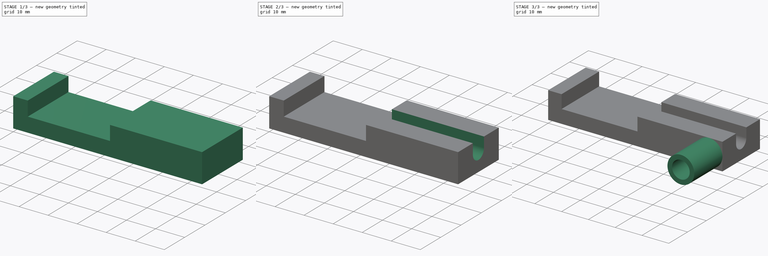
[diagram: build sequence overview — one tinted view per stage of 3, left to right]
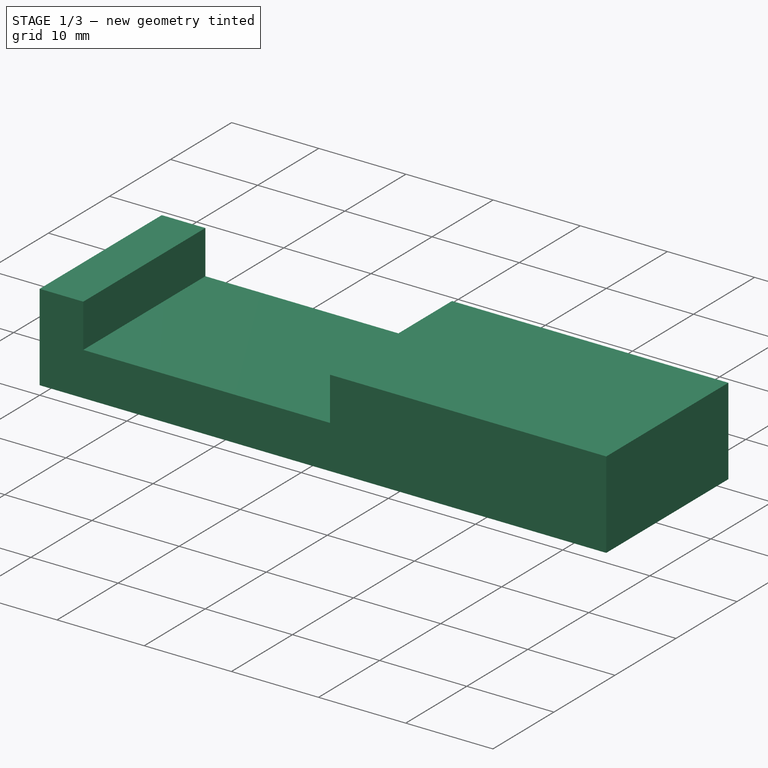
[diagram: stage 1 of 3 — iso view after this stage's code; geometry added in this stage tinted green]
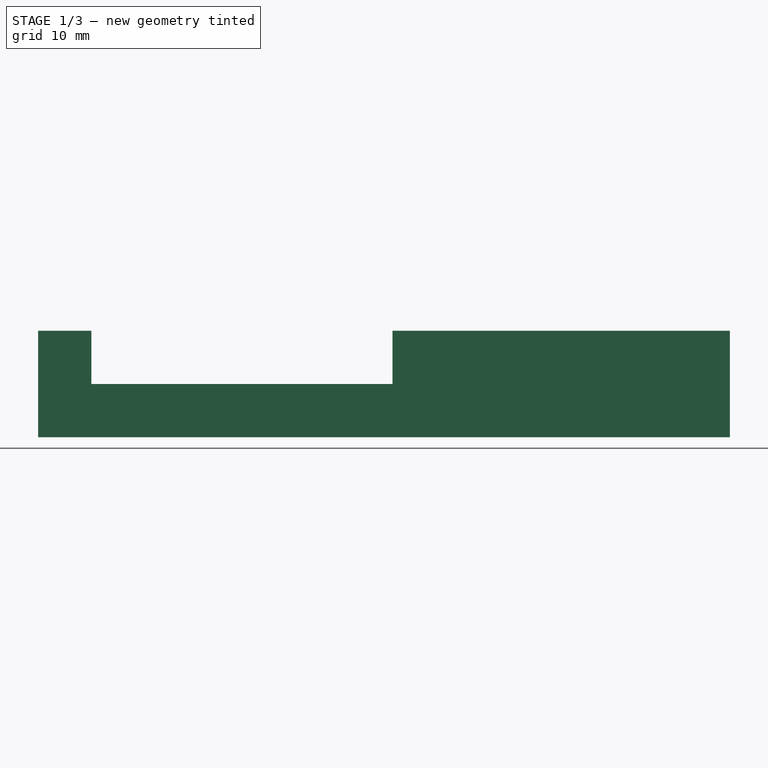
[diagram: stage 1 of 3 — front view after this stage's code; geometry added in this stage tinted green]
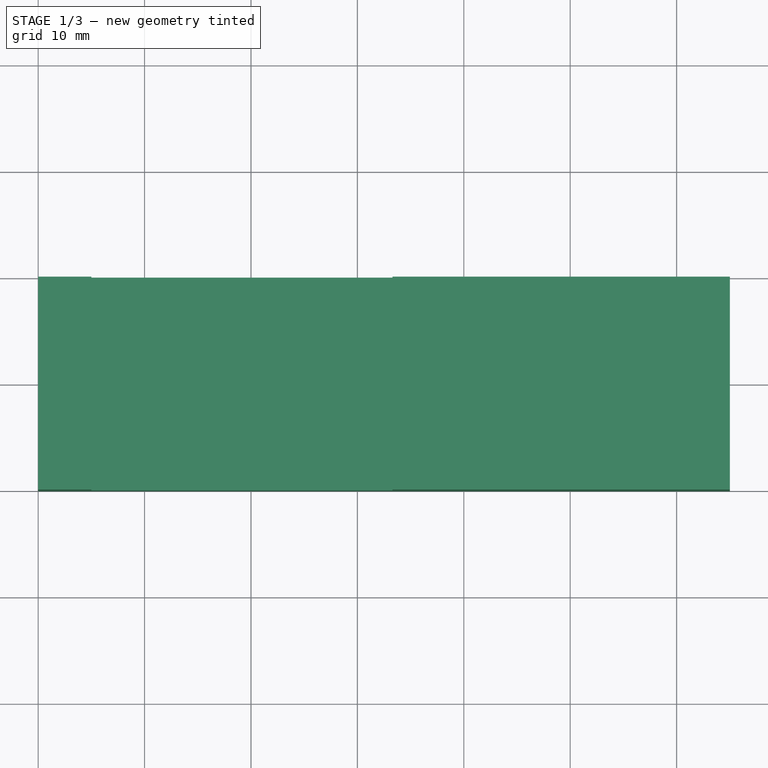
[diagram: stage 1 of 3 — top view after this stage's code; geometry added in this stage tinted green]
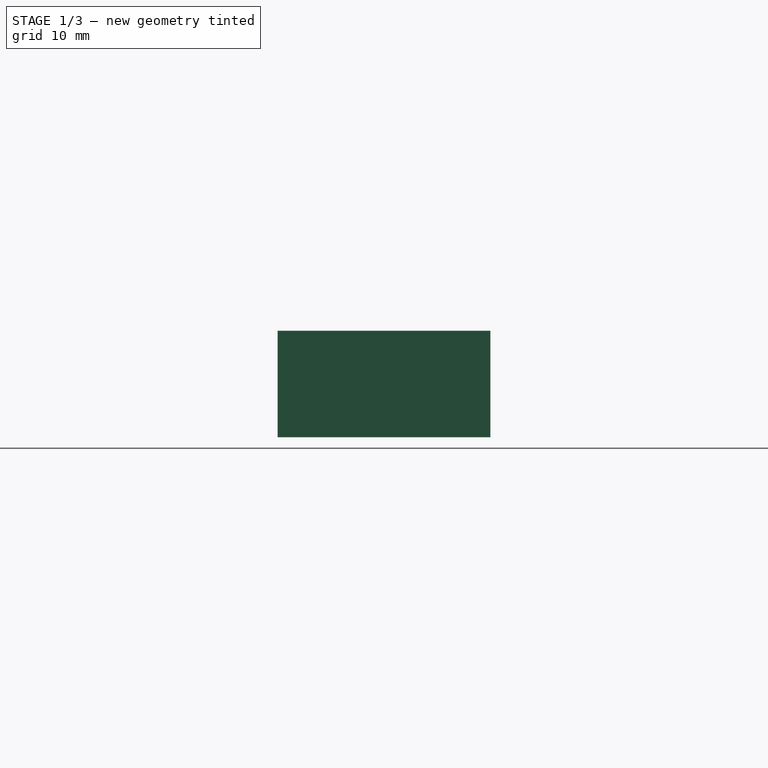
[diagram: stage 1 of 3 — right view after this stage's code; geometry added in this stage tinted green]
FCSTD DOCUMENT  (FreeCAD 0.16R6705 (Git))
Label: porta_slitta
License: All rights reserved
LicenseURL: http://it.wikipedia.org/wiki/<copyright redacted>
objects: Sketcher::SketchObject×5, PartDesign::Pad×3, PartDesign::Pocket×2
note: 15 computed .brp shape members not serialized (recipe doc carries the construction recipe); baked Part::Feature solids carry a one-line shape summary decoded from their .brp

FEATURE [Sketcher::SketchObject] Sketch
  sketch-geometry (4):
    g0: LineSegment StartX=-30 StartY=10 StartZ=0 EndX=35 EndY=10 EndZ=0
    g1: LineSegment StartX=35 StartY=10 StartZ=0 EndX=35 EndY=-10 EndZ=0
    g2: LineSegment StartX=35 StartY=-10 StartZ=0 EndX=-30 EndY=-10 EndZ=0
    g3: LineSegment StartX=-30 StartY=-10 StartZ=0 EndX=-30 EndY=10 EndZ=0
  constraints (12):
    c: Coincident(g0,g1)
    c: Coincident(g1,g2)
    c: Coincident(g2,g3)
    c: Coincident(g3,g0)
    c: Horizontal(g0)
    c: Horizontal(g2)
    c: Vertical(g1)
    c: Vertical(g3)
    c: DistanceX(g2,g1) = 65
    c: DistanceY(g2,g0) = 20
    c: Symmetric(g1,g0,g-1)
    c: DistanceX(g2,g-1) = 30
FEATURE [PartDesign::Pad] Pad
  Length = 5
  Length2 = 100
  Sketch = -> Sketch
  Type = 0
FEATURE [Sketcher::SketchObject] Sketch001
  ExternalGeometry = -> [Pad]
  Placement = pos=(0,0,5) rot=(0,0,1;0rad)
  Support = -> Pad [Face6]
  sketch-geometry (8):
    g0: LineSegment StartX=-30 StartY=10 StartZ=0 EndX=-25 EndY=10 EndZ=0
    g1: LineSegment StartX=-25 StartY=10 StartZ=0 EndX=-25 EndY=-10 EndZ=0
    g2: LineSegment StartX=-25 StartY=-10 StartZ=0 EndX=-30 EndY=-10 EndZ=0
    g3: LineSegment StartX=-30 StartY=-10 StartZ=0 EndX=-30 EndY=10 EndZ=0
    g4: LineSegment StartX=3.3 StartY=10 StartZ=0 EndX=35 EndY=10 EndZ=0
    g5: LineSegment StartX=35 StartY=10 StartZ=0 EndX=35 EndY=-10 EndZ=0
    g6: LineSegment StartX=35 StartY=-10 StartZ=0 EndX=3.3 EndY=-10 EndZ=0
    g7: LineSegment StartX=3.3 StartY=-10 StartZ=0 EndX=3.3 EndY=10 EndZ=0
  constraints (19):
    c: Horizontal(g0)
    c: Horizontal(g2)
    c: Vertical(g1)
    c: Vertical(g3)
    c: Coincident(g-3,g0)
    c: DistanceX(g0,g0) = 5
    c: Coincident(g4,g5)
    c: Coincident(g5,g6)
    c: Coincident(g6,g7)
    c: Coincident(g7,g4)
    c: Horizontal(g4)
    c: Horizontal(g6)
    c: Vertical(g5)
    c: Vertical(g7)
    c: DistanceX(g0,g4) = 28.3
    c: Coincident(g-4,g5)
    c: Coincident(g-3,g2)
    c: Coincident(g2,g3)
    c: Coincident(g2,g1)
FEATURE [PartDesign::Pad] Pad001
  Length = 5
  Length2 = 100
  Sketch = -> Sketch001
  Type = 0
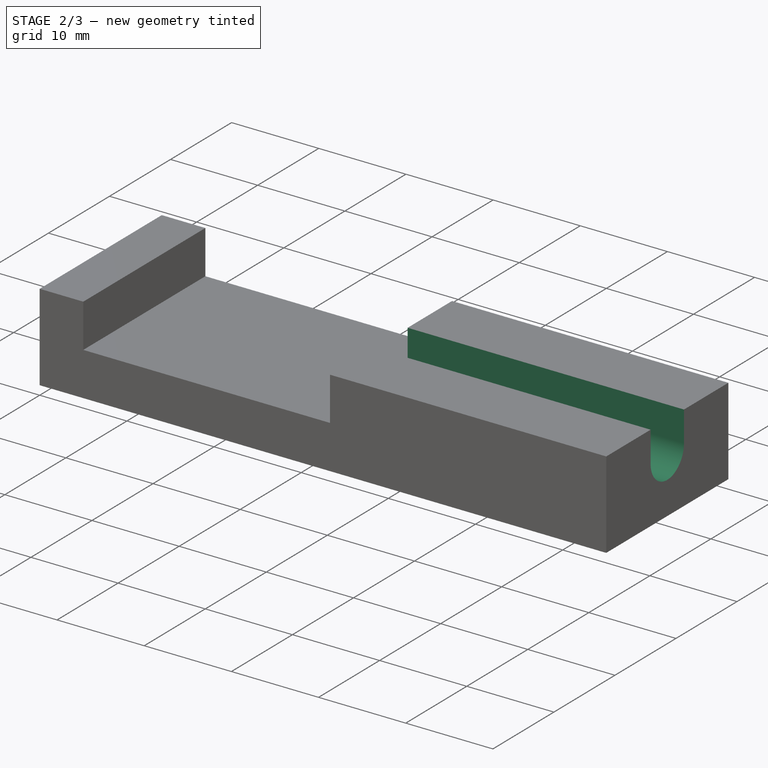
[diagram: stage 2 of 3 — iso view after this stage's code; geometry added in this stage tinted green]
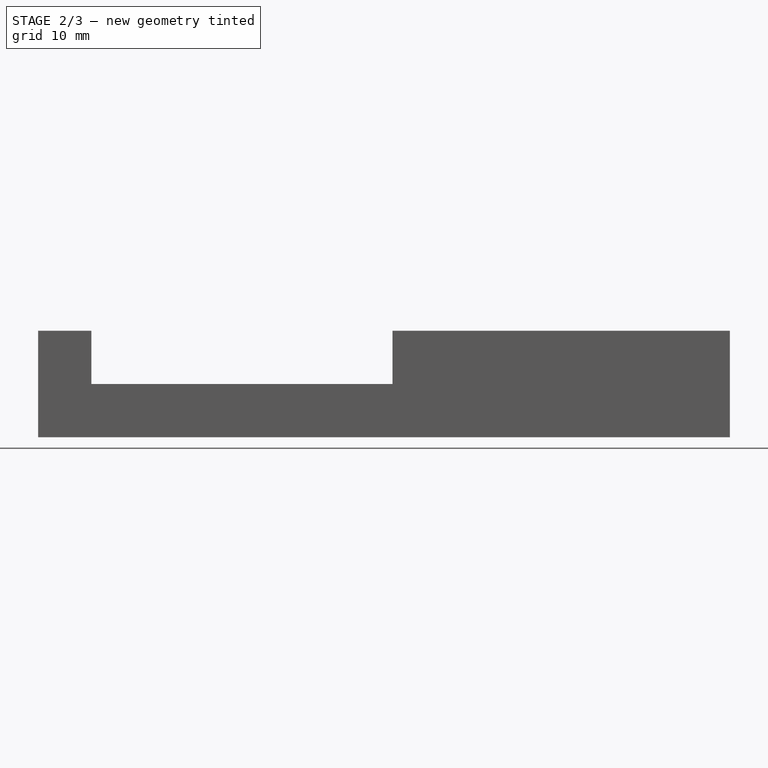
[diagram: stage 2 of 3 — front view after this stage's code; geometry added in this stage tinted green]
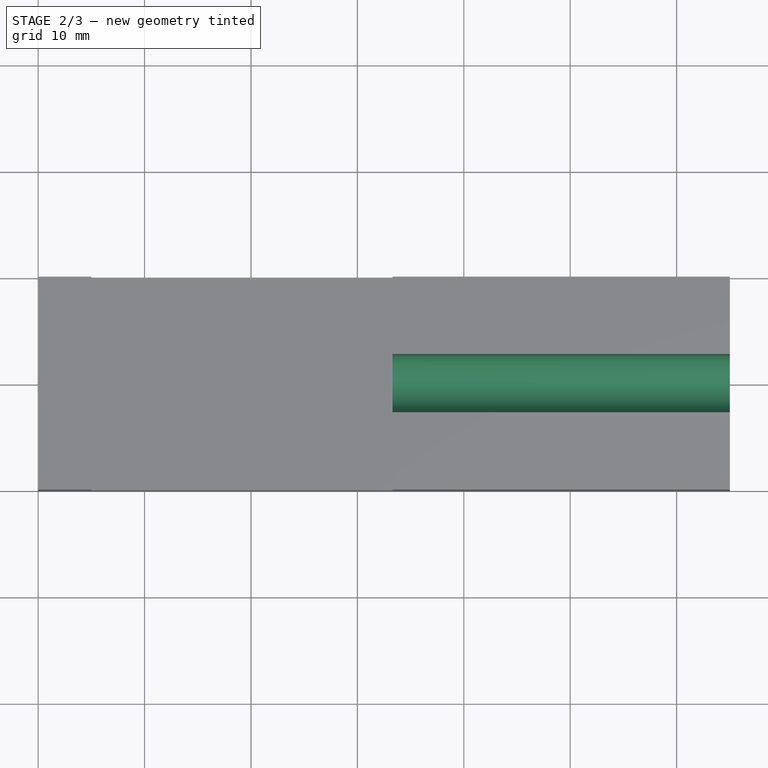
[diagram: stage 2 of 3 — top view after this stage's code; geometry added in this stage tinted green]
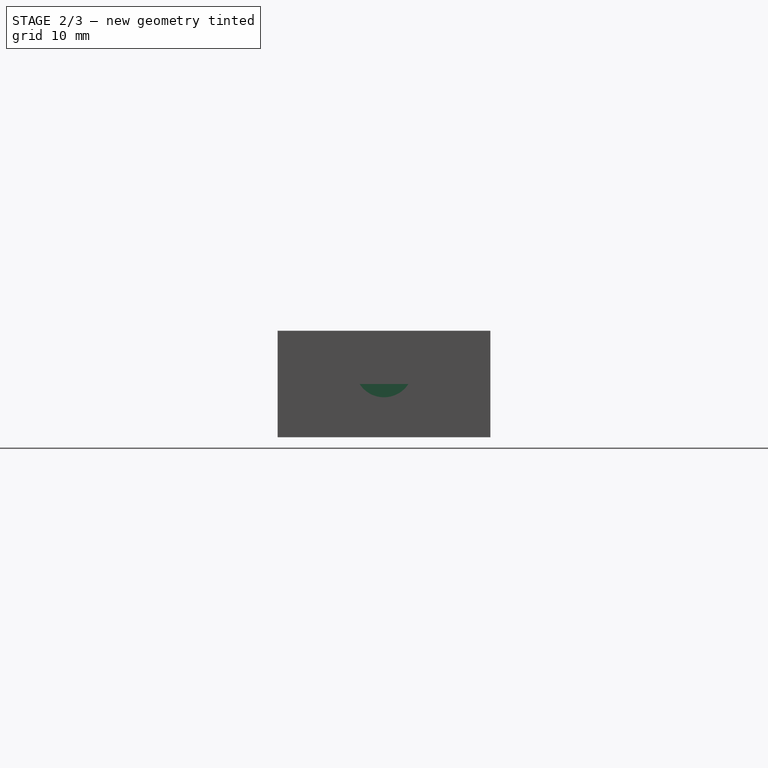
[diagram: stage 2 of 3 — right view after this stage's code; geometry added in this stage tinted green]
FEATURE [Sketcher::SketchObject] Sketch002
  ExternalGeometry = -> [Pad001]
  Placement = pos=(35,0,0) rot=(0.57735,0.57735,0.57735;2.0944rad)
  Support = -> Pad001 [Face9]
  sketch-geometry (4):
    g0: LineSegment StartX=-2.73443 StartY=10 StartZ=0 EndX=-2.73443 EndY=6.48783 EndZ=0
    g1: LineSegment StartX=2.73443 StartY=10 StartZ=0 EndX=2.73443 EndY=6.48783 EndZ=0
    g2: ArcOfCircle CenterX=0 CenterY=6.48783 CenterZ=0 NormalX=0 NormalY=0 NormalZ=1 Radius=2.73443 StartAngle=3.14159 EndAngle=6.28319
    g3: LineSegment StartX=-2.73443 StartY=10 StartZ=0 EndX=2.73443 EndY=10 EndZ=0
  constraints (11):
    c: Vertical(g1)
    c: Vertical(g0)
    c: Coincident(g0,g2)
    c: Coincident(g2,g1)
    c: Coincident(g0,g3)
    c: Coincident(g1,g3)
    c: Horizontal(g3)
    c: PointOnObject(g1,g-3)
    c: Tangent(g2,g1)
    c: Tangent(g2,g0)
    c: Symmetric(g0,g1,g-2)
FEATURE [PartDesign::Pocket] Pocket
  Length = 5
  Sketch = -> Sketch002
  Type = 2
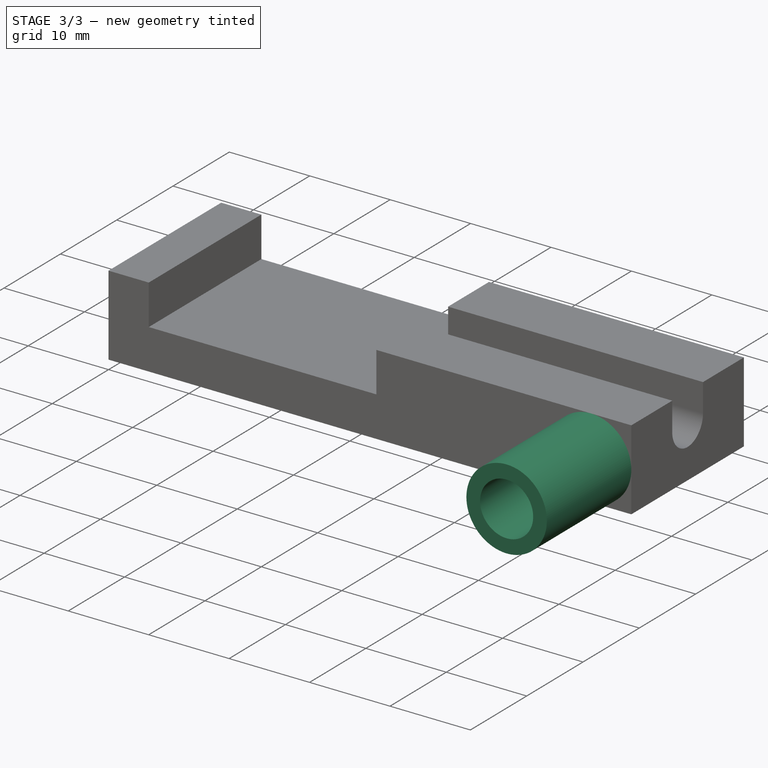
[diagram: stage 3 of 3 — iso view after this stage's code; geometry added in this stage tinted green]
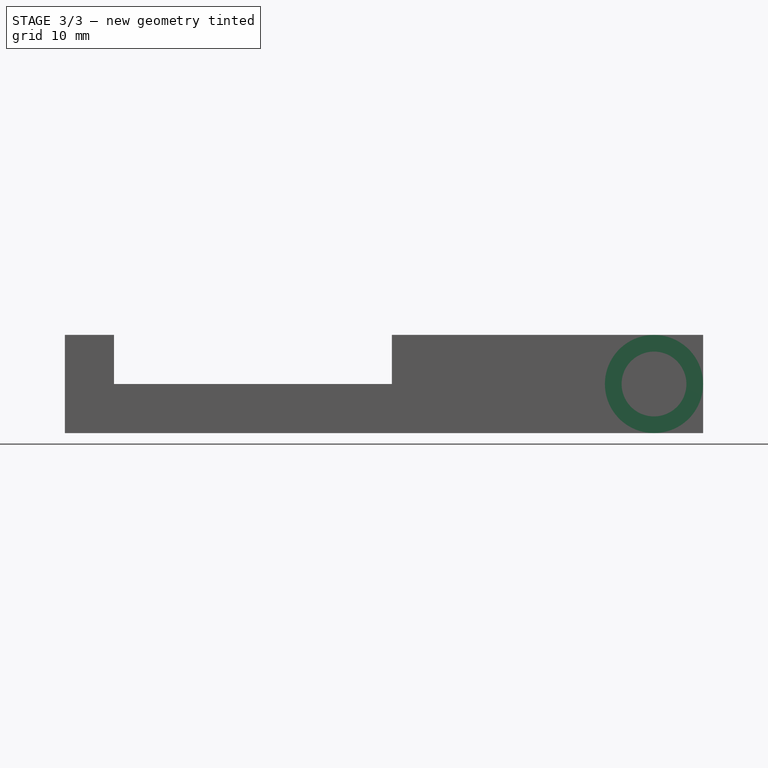
[diagram: stage 3 of 3 — front view after this stage's code; geometry added in this stage tinted green]
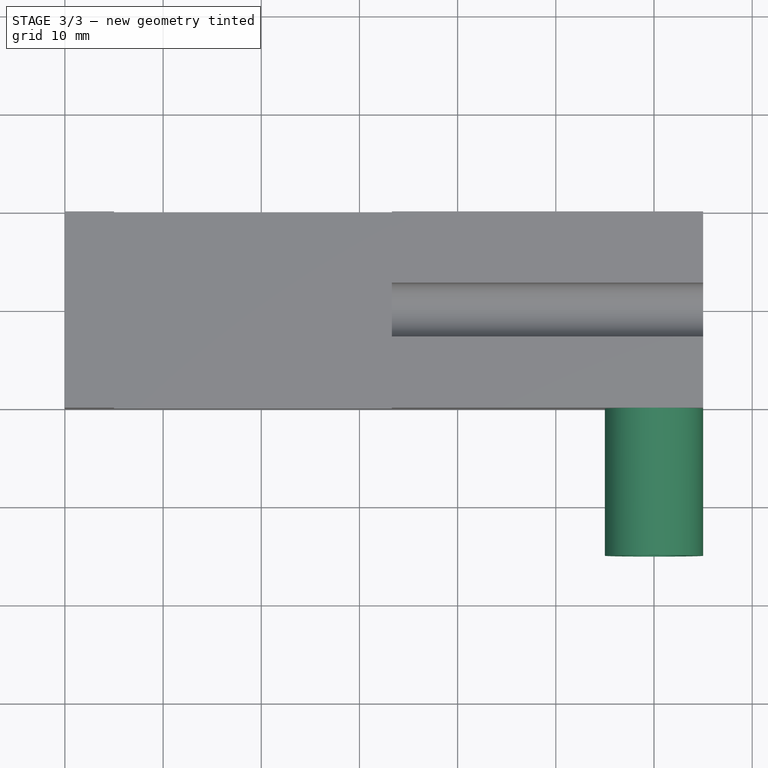
[diagram: stage 3 of 3 — top view after this stage's code; geometry added in this stage tinted green]
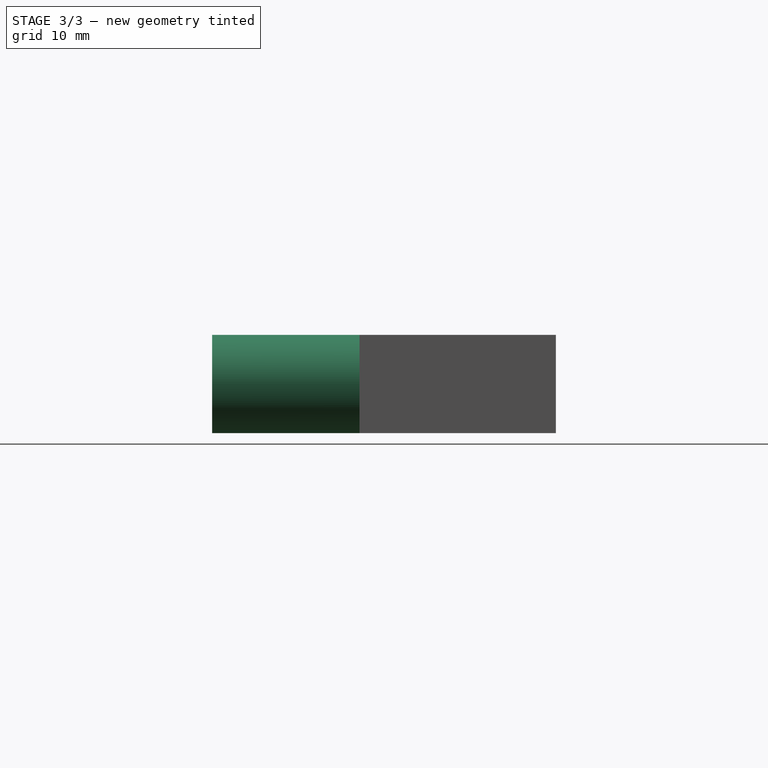
[diagram: stage 3 of 3 — right view after this stage's code; geometry added in this stage tinted green]
FEATURE [Sketcher::SketchObject] Sketch003
  ExternalGeometry = -> [Pocket]
  Placement = pos=(0,-10,0) rot=(1,0,0;1.5708rad)
  Support = -> Pocket [Face12]
  sketch-geometry (1):
    g0: Circle CenterX=30 CenterY=5 CenterZ=0 NormalX=0 NormalY=0 NormalZ=1 Radius=5
  constraints (3):
    c: Radius(g0) = 5
    c: DistanceX(g0,g-3) = 5
    c: DistanceY(g-3,g0) = 5
FEATURE [PartDesign::Pad] Pad002
  Length = 15
  Length2 = 100
  Sketch = -> Sketch003
  Type = 0
FEATURE [Sketcher::SketchObject] Sketch004
  ExternalGeometry = -> [Pad002]
  Placement = pos=(0,-25,0) rot=(1,0,0;1.5708rad)
  Support = -> Pad002 [Face1]
  sketch-geometry (1):
    g0: Circle CenterX=30 CenterY=5 CenterZ=0 NormalX=0 NormalY=0 NormalZ=1 Radius=3.3
  constraints (2):
    c: Coincident(g-3,g0)
    c: Radius(g0) = 3.3
FEATURE [PartDesign::Pocket] Pocket001
  Length = 15
  Sketch = -> Sketch004
  Type = 0
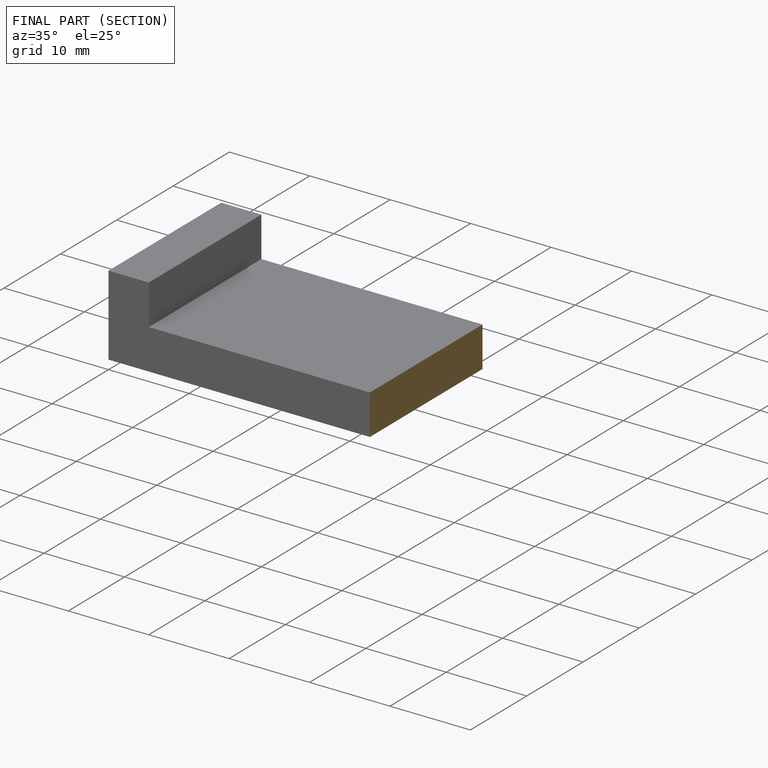
[diagram: finished part — half-section view (interior)]
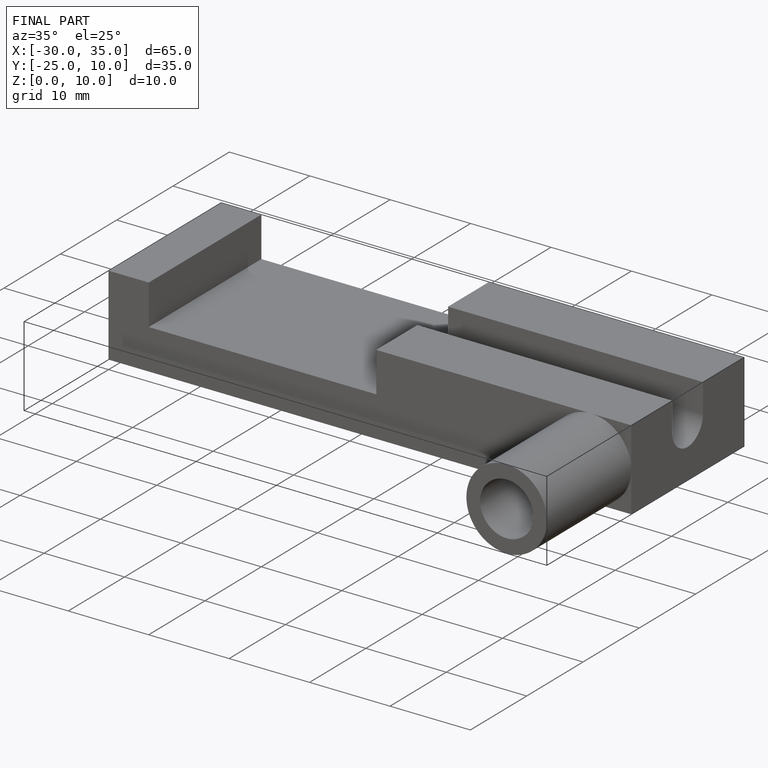
[diagram: finished part — iso view with bounding-box wireframe]
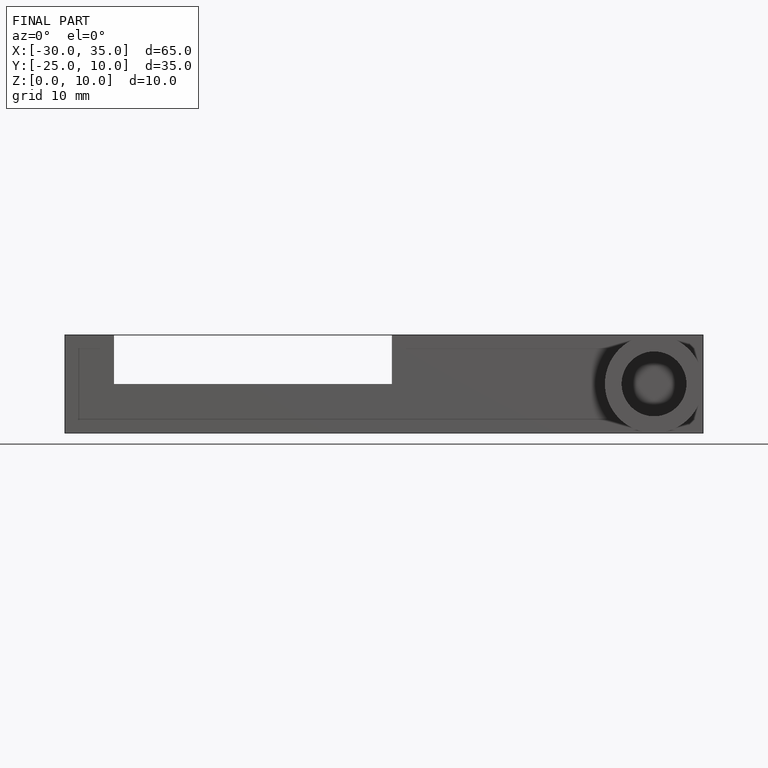
[diagram: finished part — front view with bounding-box wireframe]
